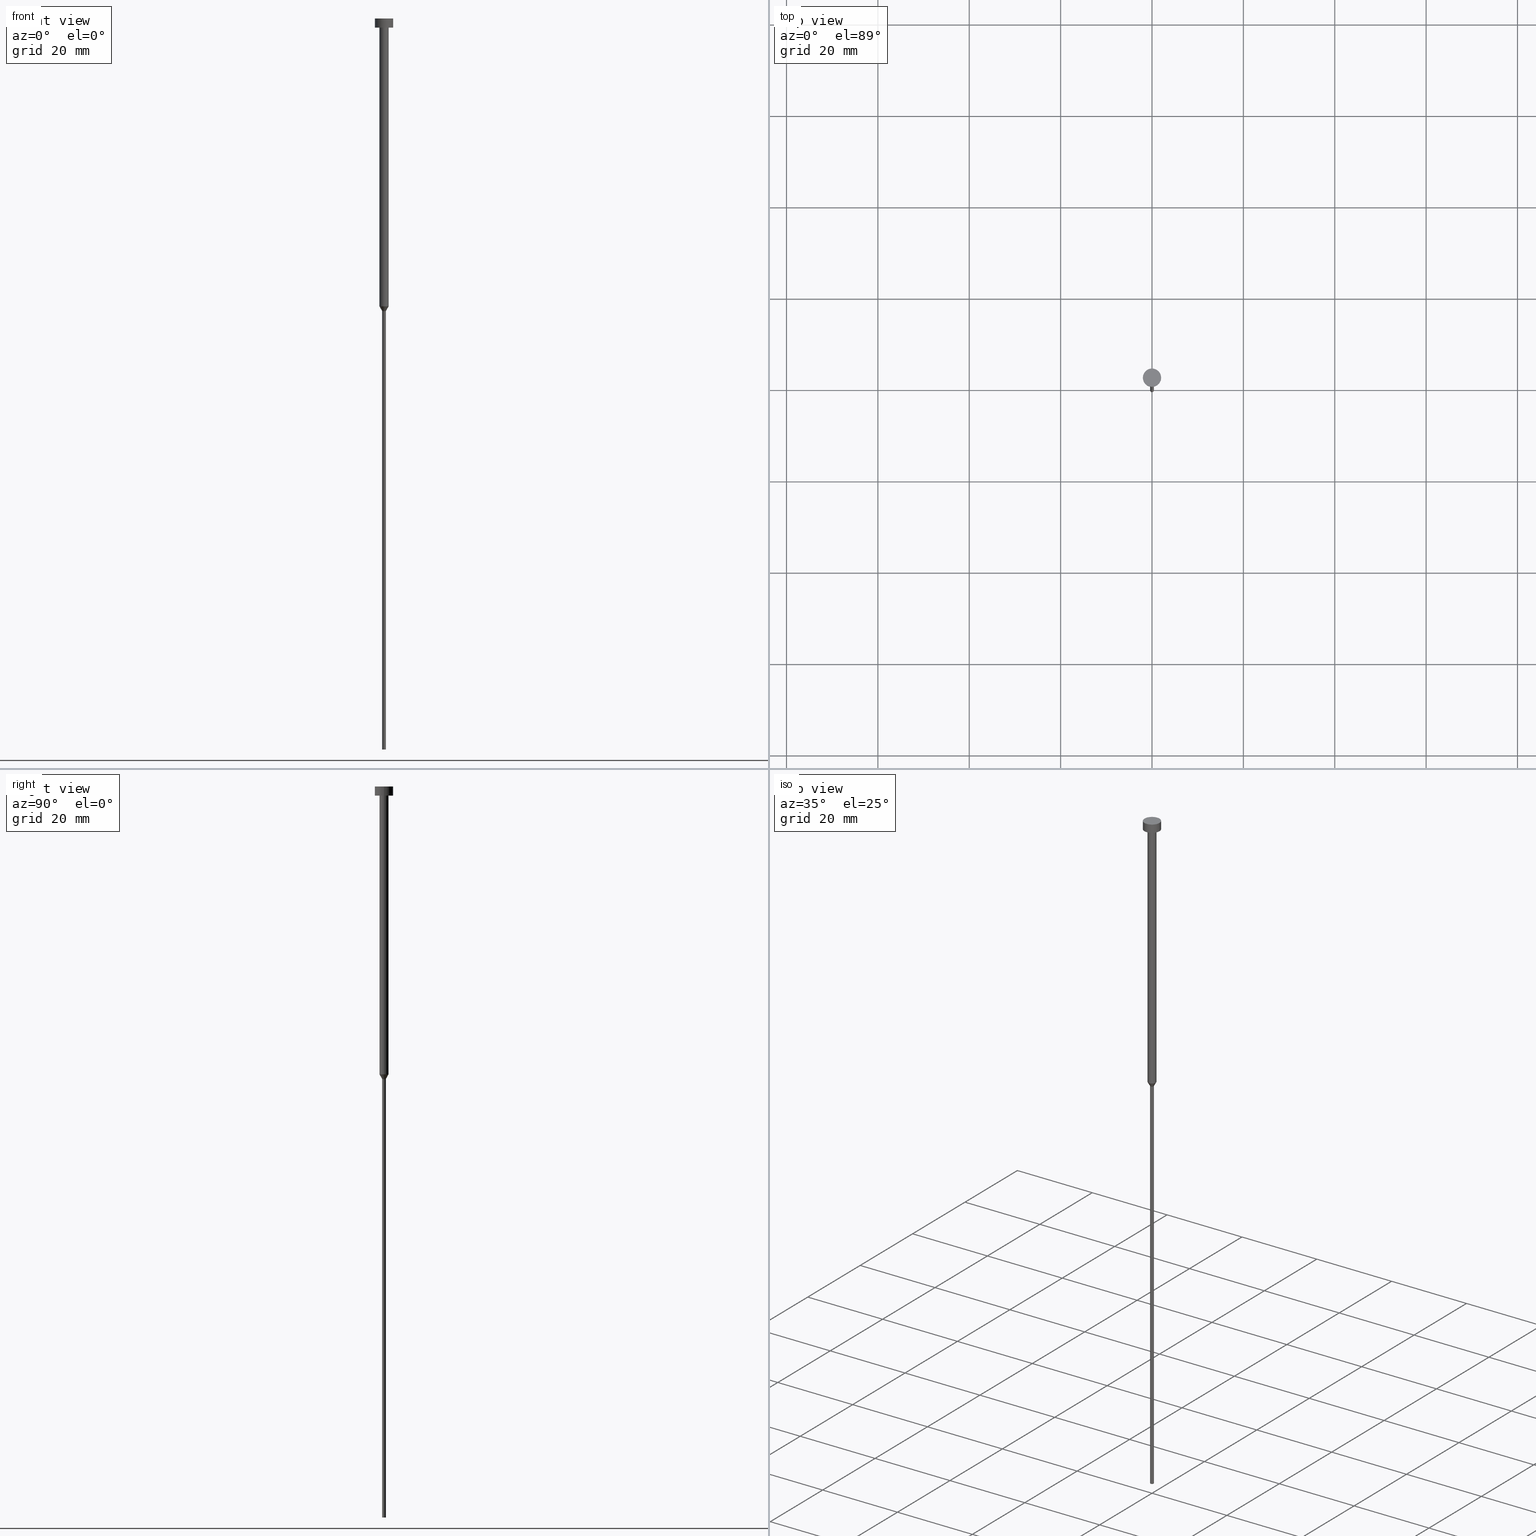
[diagram: canonical four-view strip — front | top / right | iso, engineering-drawing reading convention]
A machine part, canonical four-view strip (front | top / right | iso — engineering-drawing reading convention). The complete STEP part file that produces these views, byte-faithful:
ISO-10303-21;
HEADER;
FILE_DESCRIPTION (( 'STEP AP203' ),
    '1' );
FILE_NAME ('0901.STEP',
    '2023-02-13T11:52:03',
    ( '' ),
    ( '' ),
    'SwSTEP 2.0',
    'SolidWorks 2019',
    '' );
FILE_SCHEMA (( 'CONFIG_CONTROL_DESIGN' ));
ENDSEC;

DATA;
#1 = VERTEX_POINT ( 'NONE', #195 ) ;
#2 = ORIENTED_EDGE ( 'NONE', *, *, #99, .T. ) ;
#3 = EDGE_CURVE ( 'NONE', #116, #80, #27, .T. ) ;
#4 =( LENGTH_UNIT ( ) NAMED_UNIT ( * ) SI_UNIT ( .MILLI., .METRE. ) );
#5 = MECHANICAL_CONTEXT ( 'NONE', #353, 'mechanical' ) ;
#6 = AXIS2_PLACEMENT_3D ( 'NONE', #229, #248, #92 ) ;
#7 = EDGE_CURVE ( 'NONE', #241, #80, #87, .T. ) ;
#8 = FACE_OUTER_BOUND ( 'NONE', #24, .T. ) ;
#9 = CYLINDRICAL_SURFACE ( 'NONE', #106, 1.000000000000003331 ) ;
#10 = PERSON_AND_ORGANIZATION ( #123, #186 ) ;
#11 = AXIS2_PLACEMENT_3D ( 'NONE', #351, #55, #133 ) ;
#12 = CARTESIAN_POINT ( 'NONE',  ( -2.000000000000000000, 2.449293598294706414E-16, 0.000000000000000000 ) ) ;
#13 = ADVANCED_FACE ( 'NONE', ( #68 ), #253, .T. ) ;
#14 = CARTESIAN_POINT ( 'NONE',  ( 0.000000000000000000, 0.000000000000000000, 0.000000000000000000 ) ) ;
#15 = FACE_OUTER_BOUND ( 'NONE', #36, .T. ) ;
#16 = DATE_AND_TIME ( #183, #93 ) ;
#17 = CARTESIAN_POINT ( 'NONE',  ( 1.000000000000003553, 0.000000000000000000, -2.000000000000000444 ) ) ;
#18 = CARTESIAN_POINT ( 'NONE',  ( 0.000000000000000000, 0.000000000000000000, -64.03923048454132072 ) ) ;
#19 = EDGE_CURVE ( 'NONE', #115, #1, #315, .T. ) ;
#20 = CARTESIAN_POINT ( 'NONE',  ( -2.000000000000000000, 2.449293598294706414E-16, -2.449293598294705921E-16 ) ) ;
#21 = COORDINATED_UNIVERSAL_TIME_OFFSET ( 1, 0, .AHEAD. ) ;
#22 = DIRECTION ( 'NONE',  ( 1.000000000000000000, 0.000000000000000000, 0.000000000000000000 ) ) ;
#23 = COORDINATED_UNIVERSAL_TIME_OFFSET ( 1, 0, .AHEAD. ) ;
#24 = EDGE_LOOP ( 'NONE', ( #2, #196, #221, #266 ) ) ;
#25 = CARTESIAN_POINT ( 'NONE',  ( 0.000000000000000000, 0.000000000000000000, -63.00000000000000000 ) ) ;
#26 = CIRCLE ( 'NONE', #223, 1.000000000000003553 ) ;
#27 = LINE ( 'NONE', #12, #168 ) ;
#28 = EDGE_CURVE ( 'NONE', #1, #242, #161, .T. ) ;
#29 = ORIENTED_EDGE ( 'NONE', *, *, #262, .F. ) ;
#30 = EDGE_LOOP ( 'NONE', ( #142, #302, #122, #323 ) ) ;
#31 = ORIENTED_EDGE ( 'NONE', *, *, #282, .F. ) ;
#32 = ORIENTED_EDGE ( 'NONE', *, *, #180, .T. ) ;
#33 = APPROVAL_PERSON_ORGANIZATION ( #164, #330, #226 ) ;
#34 = EDGE_CURVE ( 'NONE', #198, #271, #148, .T. ) ;
#35 = ORIENTED_EDGE ( 'NONE', *, *, #282, .T. ) ;
#36 = EDGE_LOOP ( 'NONE', ( #139, #39 ) ) ;
#37 = CARTESIAN_POINT ( 'NONE',  ( 2.000000000000000000, 0.000000000000000000, 0.000000000000000000 ) ) ;
#38 = DIRECTION ( 'NONE',  ( 1.000000000000000000, 0.000000000000000000, 0.000000000000000000 ) ) ;
#39 = ORIENTED_EDGE ( 'NONE', *, *, #180, .F. ) ;
#40 = CARTESIAN_POINT ( 'NONE',  ( 0.000000000000000000, 0.000000000000000000, -2.000000000000000444 ) ) ;
#41 = LINE ( 'NONE', #152, #108 ) ;
#42 = LINE ( 'NONE', #121, #306 ) ;
#43 = EDGE_CURVE ( 'NONE', #1, #295, #138, .T. ) ;
#44 = CALENDAR_DATE ( 2023, 13, 2 ) ;
#45 = CC_DESIGN_APPROVAL ( #330, ( #211 ) ) ;
#46 = CARTESIAN_POINT ( 'NONE',  ( 0.4000000000000000222, 0.000000000000000000, -160.0000000000000000 ) ) ;
#47 = APPLICATION_CONTEXT ( 'configuration controlled 3d designs of mechanical parts and assemblies' ) ;
#48 = APPROVAL_DATE_TIME ( #210, #330 ) ;
#49 = CARTESIAN_POINT ( 'NONE',  ( -0.4000000000000000777, 4.898587196589413692E-17, -160.0000000000000000 ) ) ;
#50 = APPROVAL_STATUS ( 'not_yet_approved' ) ;
#51 = CC_DESIGN_DATE_AND_TIME_ASSIGNMENT ( #233, #100, ( #192 ) ) ;
#52 = DIRECTION ( 'NONE',  ( 1.000000000000000000, 0.000000000000000000, 0.000000000000000000 ) ) ;
#53 = CONICAL_SURFACE ( 'NONE', #280, 1.000000000000003109, 0.5235987755983013692 ) ;
#54 = DIRECTION ( 'NONE',  ( -0.000000000000000000, -0.000000000000000000, 1.000000000000000000 ) ) ;
#55 = DIRECTION ( 'NONE',  ( -0.000000000000000000, -0.000000000000000000, 1.000000000000000000 ) ) ;
#56 = ORIENTED_EDGE ( 'NONE', *, *, #268, .T. ) ;
#57 = EDGE_LOOP ( 'NONE', ( #56, #324, #173, #60 ) ) ;
#58 = CC_DESIGN_DATE_AND_TIME_ASSIGNMENT ( #16, #283, ( #211 ) ) ;
#59 = AXIS2_PLACEMENT_3D ( 'NONE', #91, #301, #300 ) ;
#60 = ORIENTED_EDGE ( 'NONE', *, *, #151, .F. ) ;
#61 = DIRECTION ( 'NONE',  ( -0.000000000000000000, -0.000000000000000000, 1.000000000000000000 ) ) ;
#62 = EDGE_LOOP ( 'NONE', ( #171, #243 ) ) ;
#63 = DIRECTION ( 'NONE',  ( 0.000000000000000000, -0.000000000000000000, 1.000000000000000000 ) ) ;
#64 = COORDINATED_UNIVERSAL_TIME_OFFSET ( 1, 0, .AHEAD. ) ;
#65 = CARTESIAN_POINT ( 'NONE',  ( 2.000000000000000000, 0.000000000000000000, -2.449293598294705921E-16 ) ) ;
#66 = DIRECTION ( 'NONE',  ( -0.000000000000000000, -0.000000000000000000, 1.000000000000000000 ) ) ;
#67 = DIRECTION ( 'NONE',  ( 1.000000000000000000, 0.000000000000000000, 0.000000000000000000 ) ) ;
#68 = FACE_OUTER_BOUND ( 'NONE', #30, .T. ) ;
#69 = AXIS2_PLACEMENT_3D ( 'NONE', #163, #167, #289 ) ;
#70 = FACE_OUTER_BOUND ( 'NONE', #82, .T. ) ;
#71 = PERSON_AND_ORGANIZATION ( #123, #186 ) ;
#72 = DIRECTION ( 'NONE',  ( -1.000000000000000000, 0.000000000000000000, -0.000000000000000000 ) ) ;
#73 = DIRECTION ( 'NONE',  ( -0.000000000000000000, -0.000000000000000000, 1.000000000000000000 ) ) ;
#74 = DIRECTION ( 'NONE',  ( -0.5000000000000021094, 6.123233995736791920E-17, 0.8660254037844373753 ) ) ;
#75 = CARTESIAN_POINT ( 'NONE',  ( 0.000000000000000000, 0.000000000000000000, -63.00000000000000000 ) ) ;
#76 = DATE_AND_TIME ( #105, #290 ) ;
#77 = CARTESIAN_POINT ( 'NONE',  ( 2.000000000000000000, 0.000000000000000000, -2.000000000000000444 ) ) ;
#78 = AXIS2_PLACEMENT_3D ( 'NONE', #18, #309, #343 ) ;
#79 = PRODUCT_RELATED_PRODUCT_CATEGORY ( 'detail', '', ( #197 ) ) ;
#80 = VERTEX_POINT ( 'NONE', #20 ) ;
#81 = CLOSED_SHELL ( 'NONE', ( #190, #174, #352, #216, #107, #249, #13, #270, #299, #96, #235 ) ) ;
#82 = EDGE_LOOP ( 'NONE', ( #109, #35, #269, #329 ) ) ;
#83 = DIRECTION ( 'NONE',  ( -0.000000000000000000, -0.000000000000000000, 1.000000000000000000 ) ) ;
#84 = ORIENTED_EDGE ( 'NONE', *, *, #114, .T. ) ;
#85 = EDGE_LOOP ( 'NONE', ( #200, #31 ) ) ;
#86 = AXIS2_PLACEMENT_3D ( 'NONE', #40, #184, #67 ) ;
#87 = CIRCLE ( 'NONE', #97, 2.000000000000000000 ) ;
#88 = APPLICATION_PROTOCOL_DEFINITION ( 'international standard', 'config_control_design', 1994, #353 ) ;
#89 = ADVANCED_BREP_SHAPE_REPRESENTATION ( '0901', ( #234, #101 ), #349 ) ;
#90 = CC_DESIGN_PERSON_AND_ORGANIZATION_ASSIGNMENT ( #10, #185, ( #336 ) ) ;
#91 = CARTESIAN_POINT ( 'NONE',  ( 0.000000000000000000, 0.000000000000000000, -2.449293598294705921E-16 ) ) ;
#92 = DIRECTION ( 'NONE',  ( 1.000000000000000000, 0.000000000000000000, 0.000000000000000000 ) ) ;
#93 = LOCAL_TIME ( 12, 52, 3.000000000000000000, #64 ) ;
#94 = CALENDAR_DATE ( 2023, 13, 2 ) ;
#95 = LOCAL_TIME ( 12, 52, 3.000000000000000000, #156 ) ;
#96 = ADVANCED_FACE ( 'NONE', ( #70 ), #169, .T. ) ;
#97 = AXIS2_PLACEMENT_3D ( 'NONE', #134, #218, #230 ) ;
#98 = CYLINDRICAL_SURFACE ( 'NONE', #332, 0.3999999999999999667 ) ;
#99 = EDGE_CURVE ( 'NONE', #147, #242, #260, .T. ) ;
#100 = DATE_TIME_ROLE ( 'classification_date' ) ;
#101 = AXIS2_PLACEMENT_3D ( 'NONE', #245, #120, #331 ) ;
#102 = AXIS2_PLACEMENT_3D ( 'NONE', #129, #261, #22 ) ;
#103 = CARTESIAN_POINT ( 'NONE',  ( 0.000000000000000000, 0.000000000000000000, -160.0000000000000000 ) ) ;
#104 = LINE ( 'NONE', #166, #137 ) ;
#105 = CALENDAR_DATE ( 2023, 13, 2 ) ;
#106 = AXIS2_PLACEMENT_3D ( 'NONE', #204, #272, #308 ) ;
#107 = ADVANCED_FACE ( 'NONE', ( #15 ), #238, .T. ) ;
#108 = VECTOR ( 'NONE', #294, 1000.000000000000000 ) ;
#109 = ORIENTED_EDGE ( 'NONE', *, *, #3, .F. ) ;
#110 = FACE_OUTER_BOUND ( 'NONE', #85, .T. ) ;
#111 = APPROVAL_DATE_TIME ( #76, #220 ) ;
#112 = EDGE_LOOP ( 'NONE', ( #178, #32, #224, #203 ) ) ;
#113 = ORIENTED_EDGE ( 'NONE', *, *, #7, .T. ) ;
#114 = EDGE_CURVE ( 'NONE', #295, #1, #207, .T. ) ;
#115 = VERTEX_POINT ( 'NONE', #49 ) ;
#116 = VERTEX_POINT ( 'NONE', #215 ) ;
#117 = CARTESIAN_POINT ( 'NONE',  ( 1.000000000000003109, 0.000000000000000000, -63.00000000000000000 ) ) ;
#118 = EDGE_CURVE ( 'NONE', #271, #198, #26, .T. ) ;
#119 = APPROVAL_PERSON_ORGANIZATION ( #130, #144, #310 ) ;
#120 = DIRECTION ( 'NONE',  ( 0.000000000000000000, 0.000000000000000000, 1.000000000000000000 ) ) ;
#121 = CARTESIAN_POINT ( 'NONE',  ( 1.000000000000003109, 0.000000000000000000, -63.00000000000000000 ) ) ;
#122 = ORIENTED_EDGE ( 'NONE', *, *, #262, .T. ) ;
#123 = PERSON ( 'NEUR�EN�', 'NEUR�EN�', 'NEUR�EN�', ('NEUR�EN�'), ('NEUR�EN�'), ('NEUR�EN�') ) ;
#124 = EDGE_CURVE ( 'NONE', #80, #241, #141, .T. ) ;
#125 = CARTESIAN_POINT ( 'NONE',  ( -1.000000000000003553, 1.224646799147357398E-16, -2.000000000000000444 ) ) ;
#126 = CARTESIAN_POINT ( 'NONE',  ( -0.3999999999999999667, 4.898587196589412459E-17, 0.000000000000000000 ) ) ;
#127 = DIRECTION ( 'NONE',  ( 0.000000000000000000, 0.000000000000000000, -1.000000000000000000 ) ) ;
#128 = PERSON_AND_ORGANIZATION ( #123, #186 ) ;
#129 = CARTESIAN_POINT ( 'NONE',  ( 0.000000000000000000, 0.000000000000000000, 0.000000000000000000 ) ) ;
#130 = PERSON_AND_ORGANIZATION ( #123, #186 ) ;
#131 = LINE ( 'NONE', #284, #264 ) ;
#132 = AXIS2_PLACEMENT_3D ( 'NONE', #334, #63, #251 ) ;
#133 = DIRECTION ( 'NONE',  ( 1.000000000000000000, 0.000000000000000000, 0.000000000000000000 ) ) ;
#134 = CARTESIAN_POINT ( 'NONE',  ( 0.000000000000000000, 0.000000000000000000, -2.449293598294705921E-16 ) ) ;
#135 = CYLINDRICAL_SURFACE ( 'NONE', #273, 2.000000000000000000 ) ;
#136 = EDGE_LOOP ( 'NONE', ( #354, #219, #263, #293 ) ) ;
#137 = VECTOR ( 'NONE', #237, 1000.000000000000000 ) ;
#138 = CIRCLE ( 'NONE', #78, 0.3999999999999999667 ) ;
#139 = ORIENTED_EDGE ( 'NONE', *, *, #176, .F. ) ;
#140 = CC_DESIGN_APPROVAL ( #144, ( #336 ) ) ;
#141 = CIRCLE ( 'NONE', #59, 2.000000000000000000 ) ;
#142 = ORIENTED_EDGE ( 'NONE', *, *, #28, .F. ) ;
#143 = ORIENTED_EDGE ( 'NONE', *, *, #160, .T. ) ;
#144 = APPROVAL ( #231, 'NEUR�EN�' ) ;
#145 = CARTESIAN_POINT ( 'NONE',  ( 0.000000000000000000, 0.000000000000000000, 0.000000000000000000 ) ) ;
#146 = FACE_OUTER_BOUND ( 'NONE', #112, .T. ) ;
#147 = VERTEX_POINT ( 'NONE', #117 ) ;
#148 = CIRCLE ( 'NONE', #227, 1.000000000000003553 ) ;
#149 = PERSON_AND_ORGANIZATION_ROLE ( 'design_owner' ) ;
#150 = CARTESIAN_POINT ( 'NONE',  ( 0.000000000000000000, 0.000000000000000000, 0.000000000000000000 ) ) ;
#151 = EDGE_CURVE ( 'NONE', #350, #241, #274, .T. ) ;
#152 = CARTESIAN_POINT ( 'NONE',  ( 1.000000000000003331, 0.000000000000000000, 0.000000000000000000 ) ) ;
#153 = DIRECTION ( 'NONE',  ( 0.5000000000000021094, 0.000000000000000000, 0.8660254037844373753 ) ) ;
#154 = PLANE ( 'NONE',  #132 ) ;
#155 = CARTESIAN_POINT ( 'NONE',  ( 0.000000000000000000, 0.000000000000000000, -63.00000000000000000 ) ) ;
#156 = COORDINATED_UNIVERSAL_TIME_OFFSET ( 1, 0, .AHEAD. ) ;
#157 = FACE_BOUND ( 'NONE', #62, .T. ) ;
#158 = CIRCLE ( 'NONE', #265, 1.000000000000003109 ) ;
#159 = DIRECTION ( 'NONE',  ( -0.000000000000000000, -0.000000000000000000, 1.000000000000000000 ) ) ;
#160 = EDGE_CURVE ( 'NONE', #147, #198, #41, .T. ) ;
#161 = LINE ( 'NONE', #319, #313 ) ;
#162 = APPROVAL_ROLE ( '' ) ;
#163 = CARTESIAN_POINT ( 'NONE',  ( 0.000000000000000000, 0.000000000000000000, -160.0000000000000000 ) ) ;
#164 = PERSON_AND_ORGANIZATION ( #123, #186 ) ;
#165 = AXIS2_PLACEMENT_3D ( 'NONE', #257, #288, #72 ) ;
#166 = CARTESIAN_POINT ( 'NONE',  ( 0.3999999999999999667, 0.000000000000000000, 0.000000000000000000 ) ) ;
#167 = DIRECTION ( 'NONE',  ( -0.000000000000000000, -0.000000000000000000, 1.000000000000000000 ) ) ;
#168 = VECTOR ( 'NONE', #189, 1000.000000000000000 ) ;
#169 = CYLINDRICAL_SURFACE ( 'NONE', #102, 2.000000000000000000 ) ;
#170 = CARTESIAN_POINT ( 'NONE',  ( 0.000000000000000000, 0.000000000000000000, 0.000000000000000000 ) ) ;
#171 = ORIENTED_EDGE ( 'NONE', *, *, #34, .T. ) ;
#172 = DIRECTION ( 'NONE',  ( 1.000000000000000000, 0.000000000000000000, 0.000000000000000000 ) ) ;
#173 = ORIENTED_EDGE ( 'NONE', *, *, #7, .F. ) ;
#174 = ADVANCED_FACE ( 'NONE', ( #8 ), #202, .T. ) ;
#175 = CC_DESIGN_APPROVAL ( #220, ( #192 ) ) ;
#176 = EDGE_CURVE ( 'NONE', #297, #115, #298, .T. ) ;
#177 = FACE_OUTER_BOUND ( 'NONE', #247, .T. ) ;
#178 = ORIENTED_EDGE ( 'NONE', *, *, #19, .F. ) ;
#179 = PERSON_AND_ORGANIZATION ( #123, #186 ) ;
#180 = EDGE_CURVE ( 'NONE', #115, #297, #194, .T. ) ;
#181 = FACE_OUTER_BOUND ( 'NONE', #303, .T. ) ;
#182 = DIRECTION ( 'NONE',  ( 1.000000000000000000, 0.000000000000000000, 0.000000000000000000 ) ) ;
#183 = CALENDAR_DATE ( 2023, 13, 2 ) ;
#184 = DIRECTION ( 'NONE',  ( -0.000000000000000000, -0.000000000000000000, 1.000000000000000000 ) ) ;
#185 = PERSON_AND_ORGANIZATION_ROLE ( 'creator' ) ;
#186 = ORGANIZATION ( 'NEUR�EN�', 'NEUR�EN�', '' ) ;
#187 = DIRECTION ( 'NONE',  ( -0.000000000000000000, -0.000000000000000000, 1.000000000000000000 ) ) ;
#188 = COORDINATED_UNIVERSAL_TIME_OFFSET ( 1, 0, .AHEAD. ) ;
#189 = DIRECTION ( 'NONE',  ( -0.000000000000000000, -0.000000000000000000, 1.000000000000000000 ) ) ;
#190 = ADVANCED_FACE ( 'NONE', ( #346 ), #135, .T. ) ;
#191 = DIRECTION ( 'NONE',  ( -1.000000000000000000, 0.000000000000000000, -0.000000000000000000 ) ) ;
#192 = SECURITY_CLASSIFICATION ( '', '', #338 ) ;
#193 = CARTESIAN_POINT ( 'NONE',  ( 0.000000000000000000, 0.000000000000000000, -63.00000000000000000 ) ) ;
#194 = CIRCLE ( 'NONE', #11, 0.4000000000000000222 ) ;
#195 = CARTESIAN_POINT ( 'NONE',  ( -0.3999999999999999667, 4.898587196589412459E-17, -64.03923048454132072 ) ) ;
#196 = ORIENTED_EDGE ( 'NONE', *, *, #314, .T. ) ;
#197 = PRODUCT ( '0901', '0901', '', ( #5 ) ) ;
#198 = VERTEX_POINT ( 'NONE', #17 ) ;
#199 = EDGE_CURVE ( 'NONE', #242, #147, #158, .T. ) ;
#200 = ORIENTED_EDGE ( 'NONE', *, *, #268, .F. ) ;
#201 = CIRCLE ( 'NONE', #6, 2.000000000000000000 ) ;
#202 = CYLINDRICAL_SURFACE ( 'NONE', #337, 1.000000000000003331 ) ;
#203 = ORIENTED_EDGE ( 'NONE', *, *, #43, .F. ) ;
#204 = CARTESIAN_POINT ( 'NONE',  ( 0.000000000000000000, 0.000000000000000000, 0.000000000000000000 ) ) ;
#205 = ORIENTED_EDGE ( 'NONE', *, *, #28, .T. ) ;
#206 = FACE_OUTER_BOUND ( 'NONE', #136, .T. ) ;
#207 = CIRCLE ( 'NONE', #292, 0.3999999999999999667 ) ;
#208 = PERSON_AND_ORGANIZATION_ROLE ( 'creator' ) ;
#209 = CYLINDRICAL_SURFACE ( 'NONE', #214, 0.3999999999999999667 ) ;
#210 = DATE_AND_TIME ( #94, #222 ) ;
#211 = PRODUCT_DEFINITION ( 'NEZN�M�', '', #336, #228 ) ;
#212 = DIRECTION ( 'NONE',  ( -0.000000000000000000, -0.000000000000000000, 1.000000000000000000 ) ) ;
#213 = DIRECTION ( 'NONE',  ( 1.000000000000000000, 0.000000000000000000, 0.000000000000000000 ) ) ;
#214 = AXIS2_PLACEMENT_3D ( 'NONE', #14, #311, #38 ) ;
#215 = CARTESIAN_POINT ( 'NONE',  ( -2.000000000000000000, 2.449293598294706414E-16, -2.000000000000000444 ) ) ;
#216 = ADVANCED_FACE ( 'NONE', ( #206 ), #209, .T. ) ;
#217 = DIRECTION ( 'NONE',  ( -0.000000000000000000, -0.000000000000000000, 1.000000000000000000 ) ) ;
#218 = DIRECTION ( 'NONE',  ( -0.000000000000000000, -0.000000000000000000, 1.000000000000000000 ) ) ;
#219 = ORIENTED_EDGE ( 'NONE', *, *, #19, .T. ) ;
#220 = APPROVAL ( #50, 'NEUR�EN�' ) ;
#221 = ORIENTED_EDGE ( 'NONE', *, *, #34, .F. ) ;
#222 = LOCAL_TIME ( 12, 52, 3.000000000000000000, #21 ) ;
#223 = AXIS2_PLACEMENT_3D ( 'NONE', #318, #286, #333 ) ;
#224 = ORIENTED_EDGE ( 'NONE', *, *, #340, .T. ) ;
#225 = ORIENTED_EDGE ( 'NONE', *, *, #314, .F. ) ;
#226 = APPROVAL_ROLE ( '' ) ;
#227 = AXIS2_PLACEMENT_3D ( 'NONE', #232, #159, #254 ) ;
#228 = DESIGN_CONTEXT ( 'detailed design', #47, 'design' ) ;
#229 = CARTESIAN_POINT ( 'NONE',  ( 0.000000000000000000, 0.000000000000000000, -2.000000000000000444 ) ) ;
#230 = DIRECTION ( 'NONE',  ( 1.000000000000000000, 0.000000000000000000, 0.000000000000000000 ) ) ;
#231 = APPROVAL_STATUS ( 'not_yet_approved' ) ;
#232 = CARTESIAN_POINT ( 'NONE',  ( 0.000000000000000000, 0.000000000000000000, -2.000000000000000444 ) ) ;
#233 = DATE_AND_TIME ( #44, #95 ) ;
#234 = MANIFOLD_SOLID_BREP ( 'Rotovat1', #81 ) ;
#235 = ADVANCED_FACE ( 'NONE', ( #177 ), #154, .T. ) ;
#236 = AXIS2_PLACEMENT_3D ( 'NONE', #103, #127, #191 ) ;
#237 = DIRECTION ( 'NONE',  ( -0.000000000000000000, -0.000000000000000000, 1.000000000000000000 ) ) ;
#238 = PLANE ( 'NONE',  #236 ) ;
#239 = SHAPE_DEFINITION_REPRESENTATION ( #326, #89 ) ;
#240 = CIRCLE ( 'NONE', #86, 2.000000000000000000 ) ;
#241 = VERTEX_POINT ( 'NONE', #65 ) ;
#242 = VERTEX_POINT ( 'NONE', #277 ) ;
#243 = ORIENTED_EDGE ( 'NONE', *, *, #118, .T. ) ;
#244 = ORIENTED_EDGE ( 'NONE', *, *, #99, .F. ) ;
#245 = CARTESIAN_POINT ( 'NONE',  ( 0.000000000000000000, 0.000000000000000000, 0.000000000000000000 ) ) ;
#246 = AXIS2_PLACEMENT_3D ( 'NONE', #155, #256, #258 ) ;
#247 = EDGE_LOOP ( 'NONE', ( #113, #322 ) ) ;
#248 = DIRECTION ( 'NONE',  ( -0.000000000000000000, -0.000000000000000000, 1.000000000000000000 ) ) ;
#249 = ADVANCED_FACE ( 'NONE', ( #146 ), #98, .T. ) ;
#250 = APPROVAL_DATE_TIME ( #339, #144 ) ;
#251 = DIRECTION ( 'NONE',  ( 1.000000000000000000, 0.000000000000000000, 0.000000000000000000 ) ) ;
#252 = DIRECTION ( 'NONE',  ( 1.000000000000000000, 0.000000000000000000, 0.000000000000000000 ) ) ;
#253 = CONICAL_SURFACE ( 'NONE', #246, 1.000000000000003109, 0.5235987755983013692 ) ;
#254 = DIRECTION ( 'NONE',  ( 1.000000000000000000, 0.000000000000000000, 0.000000000000000000 ) ) ;
#255 = PERSON_AND_ORGANIZATION ( #123, #186 ) ;
#256 = DIRECTION ( 'NONE',  ( -0.000000000000000000, -0.000000000000000000, 1.000000000000000000 ) ) ;
#257 = CARTESIAN_POINT ( 'NONE',  ( 0.000000000000000000, -2.000000000000000000, -2.000000000000000444 ) ) ;
#258 = DIRECTION ( 'NONE',  ( 1.000000000000000000, 0.000000000000000000, 0.000000000000000000 ) ) ;
#259 = APPROVAL_STATUS ( 'not_yet_approved' ) ;
#260 = CIRCLE ( 'NONE', #355, 1.000000000000003109 ) ;
#261 = DIRECTION ( 'NONE',  ( -0.000000000000000000, -0.000000000000000000, 1.000000000000000000 ) ) ;
#262 = EDGE_CURVE ( 'NONE', #295, #147, #42, .T. ) ;
#263 = ORIENTED_EDGE ( 'NONE', *, *, #114, .F. ) ;
#264 = VECTOR ( 'NONE', #54, 1000.000000000000000 ) ;
#265 = AXIS2_PLACEMENT_3D ( 'NONE', #25, #73, #213 ) ;
#266 = ORIENTED_EDGE ( 'NONE', *, *, #160, .F. ) ;
#267 = ORIENTED_EDGE ( 'NONE', *, *, #118, .F. ) ;
#268 = EDGE_CURVE ( 'NONE', #350, #116, #201, .T. ) ;
#269 = ORIENTED_EDGE ( 'NONE', *, *, #151, .T. ) ;
#270 = ADVANCED_FACE ( 'NONE', ( #181 ), #9, .T. ) ;
#271 = VERTEX_POINT ( 'NONE', #125 ) ;
#272 = DIRECTION ( 'NONE',  ( -0.000000000000000000, -0.000000000000000000, 1.000000000000000000 ) ) ;
#273 = AXIS2_PLACEMENT_3D ( 'NONE', #170, #348, #172 ) ;
#274 = LINE ( 'NONE', #37, #342 ) ;
#275 = DIRECTION ( 'NONE',  ( -0.000000000000000000, -0.000000000000000000, 1.000000000000000000 ) ) ;
#276 = CALENDAR_DATE ( 2023, 13, 2 ) ;
#277 = CARTESIAN_POINT ( 'NONE',  ( -1.000000000000003109, 1.224646799147356905E-16, -63.00000000000000000 ) ) ;
#278 = PERSON_AND_ORGANIZATION_ROLE ( 'classification_officer' ) ;
#279 = CARTESIAN_POINT ( 'NONE',  ( 0.3999999999999999667, 0.000000000000000000, -64.03923048454132072 ) ) ;
#280 = AXIS2_PLACEMENT_3D ( 'NONE', #193, #217, #287 ) ;
#281 = VECTOR ( 'NONE', #212, 1000.000000000000000 ) ;
#282 = EDGE_CURVE ( 'NONE', #116, #350, #240, .T. ) ;
#283 = DATE_TIME_ROLE ( 'creation_date' ) ;
#284 = CARTESIAN_POINT ( 'NONE',  ( -1.000000000000003331, 1.224646799147357151E-16, 0.000000000000000000 ) ) ;
#285 = CC_DESIGN_SECURITY_CLASSIFICATION ( #192, ( #336 ) ) ;
#286 = DIRECTION ( 'NONE',  ( -0.000000000000000000, -0.000000000000000000, 1.000000000000000000 ) ) ;
#287 = DIRECTION ( 'NONE',  ( 1.000000000000000000, 0.000000000000000000, 0.000000000000000000 ) ) ;
#288 = DIRECTION ( 'NONE',  ( 0.000000000000000000, 0.000000000000000000, -1.000000000000000000 ) ) ;
#289 = DIRECTION ( 'NONE',  ( 1.000000000000000000, 0.000000000000000000, 0.000000000000000000 ) ) ;
#290 = LOCAL_TIME ( 12, 52, 3.000000000000000000, #23 ) ;
#291 = CC_DESIGN_PERSON_AND_ORGANIZATION_ASSIGNMENT ( #179, #149, ( #197 ) ) ;
#292 = AXIS2_PLACEMENT_3D ( 'NONE', #347, #66, #341 ) ;
#293 = ORIENTED_EDGE ( 'NONE', *, *, #340, .F. ) ;
#294 = DIRECTION ( 'NONE',  ( -0.000000000000000000, -0.000000000000000000, 1.000000000000000000 ) ) ;
#295 = VERTEX_POINT ( 'NONE', #279 ) ;
#296 = APPROVAL_PERSON_ORGANIZATION ( #71, #220, #162 ) ;
#297 = VERTEX_POINT ( 'NONE', #46 ) ;
#298 = CIRCLE ( 'NONE', #69, 0.4000000000000000222 ) ;
#299 = ADVANCED_FACE ( 'NONE', ( #157, #110 ), #317, .T. ) ;
#300 = DIRECTION ( 'NONE',  ( 1.000000000000000000, 0.000000000000000000, 0.000000000000000000 ) ) ;
#301 = DIRECTION ( 'NONE',  ( -0.000000000000000000, -0.000000000000000000, 1.000000000000000000 ) ) ;
#302 = ORIENTED_EDGE ( 'NONE', *, *, #43, .T. ) ;
#303 = EDGE_LOOP ( 'NONE', ( #225, #321, #143, #267 ) ) ;
#304 = APPLICATION_PROTOCOL_DEFINITION ( 'international standard', 'config_control_design', 1994, #47 ) ;
#305 = CC_DESIGN_PERSON_AND_ORGANIZATION_ASSIGNMENT ( #307, #208, ( #211 ) ) ;
#306 = VECTOR ( 'NONE', #153, 1000.000000000000227 ) ;
#307 = PERSON_AND_ORGANIZATION ( #123, #186 ) ;
#308 = DIRECTION ( 'NONE',  ( 1.000000000000000000, 0.000000000000000000, 0.000000000000000000 ) ) ;
#309 = DIRECTION ( 'NONE',  ( -0.000000000000000000, -0.000000000000000000, 1.000000000000000000 ) ) ;
#310 = APPROVAL_ROLE ( '' ) ;
#311 = DIRECTION ( 'NONE',  ( -0.000000000000000000, -0.000000000000000000, 1.000000000000000000 ) ) ;
#312 = LOCAL_TIME ( 12, 52, 3.000000000000000000, #188 ) ;
#313 = VECTOR ( 'NONE', #74, 1000.000000000000227 ) ;
#314 = EDGE_CURVE ( 'NONE', #242, #271, #131, .T. ) ;
#315 = LINE ( 'NONE', #126, #281 ) ;
#316 = PERSON_AND_ORGANIZATION_ROLE ( 'design_supplier' ) ;
#317 = PLANE ( 'NONE',  #165 ) ;
#318 = CARTESIAN_POINT ( 'NONE',  ( 0.000000000000000000, 0.000000000000000000, -2.000000000000000444 ) ) ;
#319 = CARTESIAN_POINT ( 'NONE',  ( -1.000000000000003109, 1.224646799147356905E-16, -63.00000000000000000 ) ) ;
#320 = CC_DESIGN_PERSON_AND_ORGANIZATION_ASSIGNMENT ( #255, #316, ( #336 ) ) ;
#321 = ORIENTED_EDGE ( 'NONE', *, *, #199, .T. ) ;
#322 = ORIENTED_EDGE ( 'NONE', *, *, #124, .T. ) ;
#323 = ORIENTED_EDGE ( 'NONE', *, *, #199, .F. ) ;
#324 = ORIENTED_EDGE ( 'NONE', *, *, #3, .T. ) ;
#325 =( NAMED_UNIT ( * ) PLANE_ANGLE_UNIT ( ) SI_UNIT ( $, .RADIAN. ) );
#326 = PRODUCT_DEFINITION_SHAPE ( 'NONE', 'NONE',  #211 ) ;
#327 = EDGE_LOOP ( 'NONE', ( #84, #205, #244, #29 ) ) ;
#328 =( NAMED_UNIT ( * ) SI_UNIT ( $, .STERADIAN. ) SOLID_ANGLE_UNIT ( ) );
#329 = ORIENTED_EDGE ( 'NONE', *, *, #124, .F. ) ;
#330 = APPROVAL ( #259, 'NEUR�EN�' ) ;
#331 = DIRECTION ( 'NONE',  ( 1.000000000000000000, 0.000000000000000000, 0.000000000000000000 ) ) ;
#332 = AXIS2_PLACEMENT_3D ( 'NONE', #150, #275, #182 ) ;
#333 = DIRECTION ( 'NONE',  ( 1.000000000000000000, 0.000000000000000000, 0.000000000000000000 ) ) ;
#334 = CARTESIAN_POINT ( 'NONE',  ( 0.000000000000000000, 0.000000000000000000, -1.224646799147352961E-16 ) ) ;
#335 = UNCERTAINTY_MEASURE_WITH_UNIT (LENGTH_MEASURE( 1.000000000000000082E-05 ), #4, 'distance_accuracy_value', 'NONE');
#336 = PRODUCT_DEFINITION_FORMATION_WITH_SPECIFIED_SOURCE ( 'LIBOVOLN�', '', #197, .NOT_KNOWN. ) ;
#337 = AXIS2_PLACEMENT_3D ( 'NONE', #145, #61, #52 ) ;
#338 = SECURITY_CLASSIFICATION_LEVEL ( 'unclassified' ) ;
#339 = DATE_AND_TIME ( #276, #312 ) ;
#340 = EDGE_CURVE ( 'NONE', #297, #295, #104, .T. ) ;
#341 = DIRECTION ( 'NONE',  ( 1.000000000000000000, 0.000000000000000000, 0.000000000000000000 ) ) ;
#342 = VECTOR ( 'NONE', #83, 1000.000000000000000 ) ;
#343 = DIRECTION ( 'NONE',  ( 1.000000000000000000, 0.000000000000000000, 0.000000000000000000 ) ) ;
#344 = FACE_OUTER_BOUND ( 'NONE', #327, .T. ) ;
#345 = CC_DESIGN_PERSON_AND_ORGANIZATION_ASSIGNMENT ( #128, #278, ( #192 ) ) ;
#346 = FACE_OUTER_BOUND ( 'NONE', #57, .T. ) ;
#347 = CARTESIAN_POINT ( 'NONE',  ( 0.000000000000000000, 0.000000000000000000, -64.03923048454132072 ) ) ;
#348 = DIRECTION ( 'NONE',  ( -0.000000000000000000, -0.000000000000000000, 1.000000000000000000 ) ) ;
#349 =( GEOMETRIC_REPRESENTATION_CONTEXT ( 3 ) GLOBAL_UNCERTAINTY_ASSIGNED_CONTEXT ( ( #335 ) ) GLOBAL_UNIT_ASSIGNED_CONTEXT ( ( #4, #325, #328 ) ) REPRESENTATION_CONTEXT ( 'NONE', 'WORKASPACE' ) );
#350 = VERTEX_POINT ( 'NONE', #77 ) ;
#351 = CARTESIAN_POINT ( 'NONE',  ( 0.000000000000000000, 0.000000000000000000, -160.0000000000000000 ) ) ;
#352 = ADVANCED_FACE ( 'NONE', ( #344 ), #53, .T. ) ;
#353 = APPLICATION_CONTEXT ( 'configuration controlled 3d designs of mechanical parts and assemblies' ) ;
#354 = ORIENTED_EDGE ( 'NONE', *, *, #176, .T. ) ;
#355 = AXIS2_PLACEMENT_3D ( 'NONE', #75, #187, #252 ) ;
ENDSEC;
END-ISO-10303-21;
